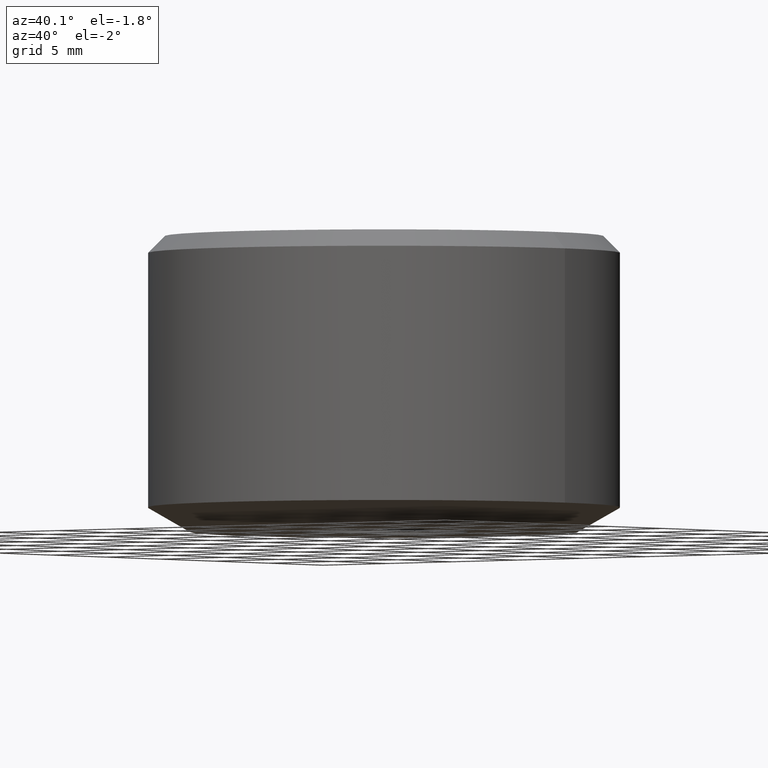
[diagram: clean part render]
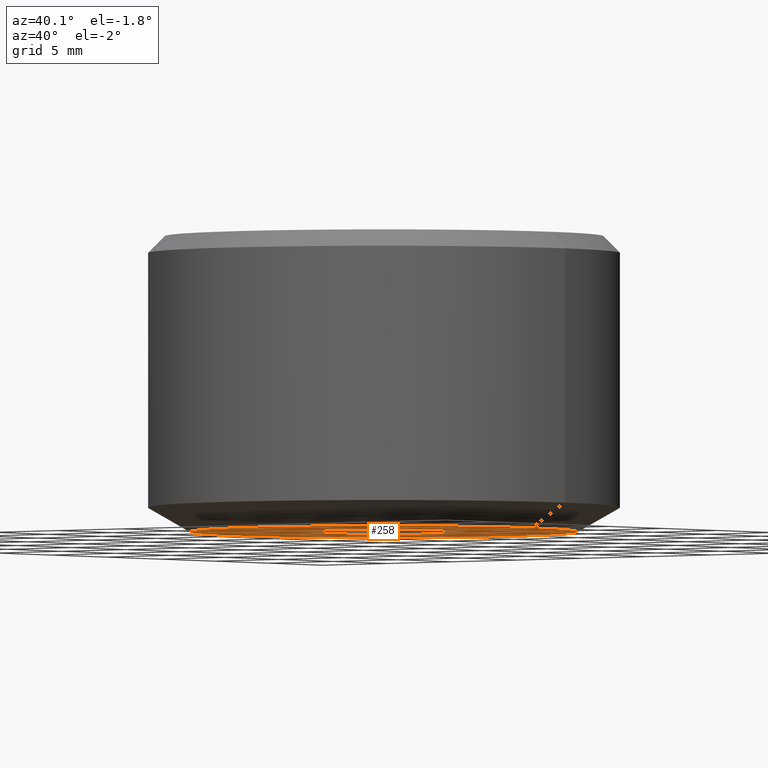
[diagram: same view with one face highlighted and labeled with its STEP entity id]
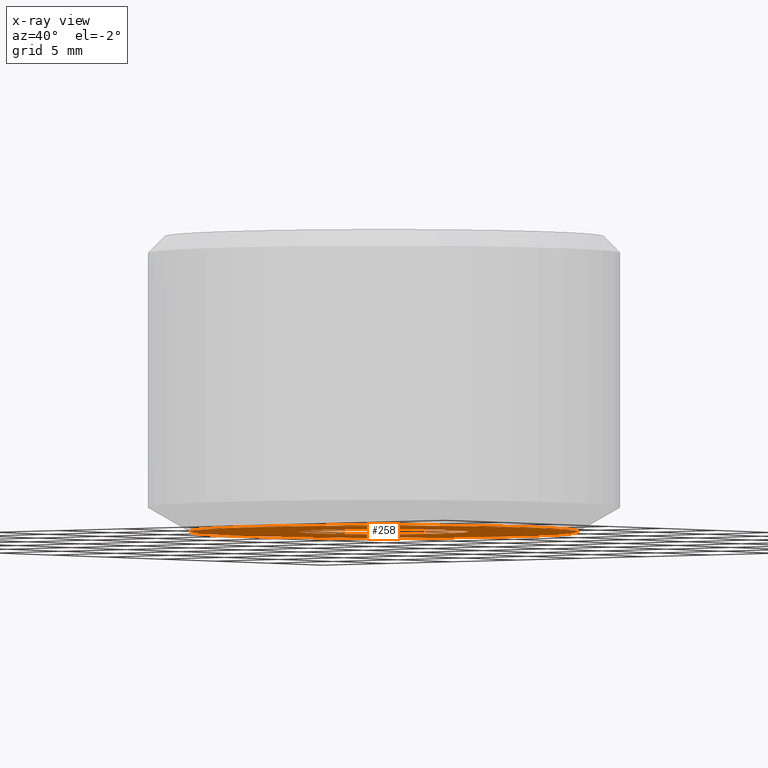
[diagram: x-ray of the same camera — body ghosted, the highlighted face saturated]
A machine part, auxiliary view. The second image highlights one B-rep face of the part: STEP entity #258.
The next image is the same camera in x-ray: the body ghosted, the highlighted face saturated — about 0% of this face is hidden behind the body in this view.
In plain terms, the highlighted planar face has unit normal (-0, 0, -1).
Its self-contained STEP definition (entity closure, byte-faithful):
#9 = EDGE_LOOP ( 'NONE', ( #316, #244 ) ) ;
#12 = CIRCLE ( 'NONE', #348, 11.50000000000106600 ) ;
#16 = AXIS2_PLACEMENT_3D ( 'NONE', #46, #52, #67 ) ;
#19 = CARTESIAN_POINT ( 'NONE',  ( -5.000000000000000000, -5.551115123125782700E-014, 4.611310910794871800E-013 ) ) ;
#26 = VERTEX_POINT ( 'NONE', #109 ) ;
#43 = CARTESIAN_POINT ( 'NONE',  ( 0.0000000000000000000, -5.551115123125782700E-014, 4.440892098500626200E-013 ) ) ;
#46 = CARTESIAN_POINT ( 'NONE',  ( 0.0000000000000000000, -5.551115123125782700E-014, 4.611310910794871800E-013 ) ) ;
#49 = VERTEX_POINT ( 'NONE', #19 ) ;
#52 = DIRECTION ( 'NONE',  ( -0.0000000000000000000, -0.0000000000000000000, -1.000000000000000000 ) ) ;
#63 = CIRCLE ( 'NONE', #187, 11.50000000000106600 ) ;
#67 = DIRECTION ( 'NONE',  ( -1.000000000000000000, 0.0000000000000000000, 0.0000000000000000000 ) ) ;
#86 = EDGE_CURVE ( 'NONE', #26, #177, #12, .T. ) ;
#93 = ORIENTED_EDGE ( 'NONE', *, *, #283, .F. ) ;
#109 = CARTESIAN_POINT ( 'NONE',  ( -11.50000000000106600, -5.394972656234488400E-014, 4.440892098500626200E-013 ) ) ;
#111 = CARTESIAN_POINT ( 'NONE',  ( 0.0000000000000000000, 4.999999999999944900, 4.526101504647749000E-013 ) ) ;
#120 = DIRECTION ( 'NONE',  ( -0.0000000000000000000, -0.0000000000000000000, -1.000000000000000000 ) ) ;
#123 = AXIS2_PLACEMENT_3D ( 'NONE', #111, #307, #212 ) ;
#127 = AXIS2_PLACEMENT_3D ( 'NONE', #184, #120, #266 ) ;
#144 = CIRCLE ( 'NONE', #16, 5.000000000000000000 ) ;
#145 = CARTESIAN_POINT ( 'NONE',  ( 5.000000000000000000, -5.489882783168415100E-014, 4.611310910794871800E-013 ) ) ;
#168 = FACE_OUTER_BOUND ( 'NONE', #9, .T. ) ;
#177 = VERTEX_POINT ( 'NONE', #311 ) ;
#184 = CARTESIAN_POINT ( 'NONE',  ( 0.0000000000000000000, -5.551115123125782700E-014, 4.611310910794871800E-013 ) ) ;
#187 = AXIS2_PLACEMENT_3D ( 'NONE', #43, #208, #306 ) ;
#192 = DIRECTION ( 'NONE',  ( -0.0000000000000000000, -0.0000000000000000000, -1.000000000000000000 ) ) ;
#208 = DIRECTION ( 'NONE',  ( -0.0000000000000000000, -0.0000000000000000000, -1.000000000000000000 ) ) ;
#212 = DIRECTION ( 'NONE',  ( -1.000000000000000000, 0.0000000000000000000, 0.0000000000000000000 ) ) ;
#215 = CIRCLE ( 'NONE', #127, 5.000000000000000000 ) ;
#221 = PLANE ( 'NONE',  #123 ) ;
#235 = CARTESIAN_POINT ( 'NONE',  ( 0.0000000000000000000, -5.551115123125782700E-014, 4.440892098500626200E-013 ) ) ;
#244 = ORIENTED_EDGE ( 'NONE', *, *, #86, .T. ) ;
#249 = ORIENTED_EDGE ( 'NONE', *, *, #293, .F. ) ;
#258 = ADVANCED_FACE ( 'NONE', ( #168, #284 ), #221, .T. ) ;
#266 = DIRECTION ( 'NONE',  ( -1.000000000000000000, 0.0000000000000000000, 0.0000000000000000000 ) ) ;
#268 = EDGE_CURVE ( 'NONE', #177, #26, #63, .T. ) ;
#271 = DIRECTION ( 'NONE',  ( -1.000000000000000000, 0.0000000000000000000, 0.0000000000000000000 ) ) ;
#283 = EDGE_CURVE ( 'NONE', #49, #295, #144, .T. ) ;
#284 = FACE_BOUND ( 'NONE', #328, .T. ) ;
#293 = EDGE_CURVE ( 'NONE', #295, #49, #215, .T. ) ;
#295 = VERTEX_POINT ( 'NONE', #145 ) ;
#306 = DIRECTION ( 'NONE',  ( -1.000000000000000000, 0.0000000000000000000, 0.0000000000000000000 ) ) ;
#307 = DIRECTION ( 'NONE',  ( -0.0000000000000000000, 0.0000000000000000000, -1.000000000000000000 ) ) ;
#311 = CARTESIAN_POINT ( 'NONE',  ( 11.50000000000106600, -5.551115123125782700E-014, 4.440892098500626200E-013 ) ) ;
#316 = ORIENTED_EDGE ( 'NONE', *, *, #268, .T. ) ;
#328 = EDGE_LOOP ( 'NONE', ( #93, #249 ) ) ;
#348 = AXIS2_PLACEMENT_3D ( 'NONE', #235, #192, #271 ) ;